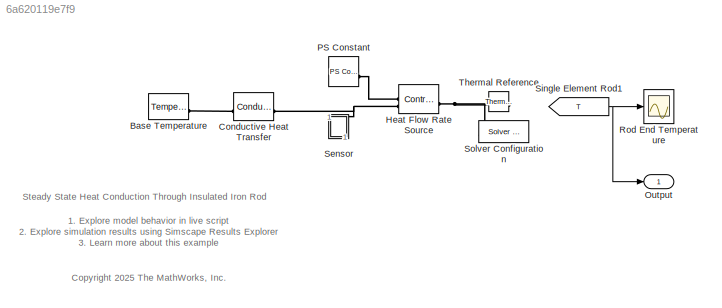
MODEL slx_6a620119e7f9
KIND model
CONFIG AbsTol = 1e-3
CONFIG EnableMultiTasking = on
CONFIG FixedStep = auto
CONFIG MaxStep = 100
CONFIG MinStep = auto
CONFIG PreLoadFcn = if ~exist('T_base', 'var')   T_base= 100;   end % [degC]\nif ~exist('L', 'var')        L= 0.2;        end % [m]\nif ~exist('D', 'var')        D= 0.025;      end % [m]\nif ~exist('A', 'var')        A= pi*D^2/4;   end % [m^2]\nif ~exist('k', 'var')        k= 80.2;       end % [W/(K*m)]\nif ~exist('Q_case_1', 'var') Q_case_1= 18;  end % [W]
CONFIG RelTol = 1e-3
CONFIG SampleTimeConstraint = Unconstrained
CONFIG SolverName = VariableStepAuto
CONFIG StartTime = 0.0
CONFIG StopTime = 5
BLOCK [Reference] Base Temperature  REF=fl_lib/Thermal/Thermal Sources/Temperature Source
  SourceBlock = fl_lib/Thermal/Thermal Sources/Temperature Source
  SourceType = Temperature Source
BLOCK [Reference] Conductive Heat Transfer  REF=fl_lib/Thermal/Thermal Elements/Conductive Heat
Transfer
  SourceBlock = fl_lib/Thermal/Thermal Elements/Conductive Heat\nTransfer
  SourceType = Conductive Heat\nTransfer
BLOCK [Reference] Heat Flow Rate Source  REF=fl_lib/Thermal/Thermal Sources/Controlled Heat Flow
Rate Source
  SourceBlock = fl_lib/Thermal/Thermal Sources/Controlled Heat Flow\nRate Source
  SourceType = Controlled Heat Flow\nRate Source
BLOCK [Outport] Output
BLOCK [Reference] PS Constant  REF=fl_lib/Physical Signals/Sources/PS Constant
  SourceBlock = fl_lib/Physical Signals/Sources/PS Constant
  SourceType = PS Constant
BLOCK [Scope] Rod End Temperature
  ActiveDisplayYMaximum = 9.55536
  ActiveDisplayYMinimum = 7.55536
  DataLoggingDecimation = 1
  DataLoggingLimitDataPoints = on
  DataLoggingSaveFormat = Structure With Time
  Floating = off
  GraphicalSettings = {"GraphicalSettings":{"LegacySettings":true,"Style":{"AxesScalingProperties":{"ScaleAxesLimitsAtStop":false},"Style":{"AxesColor":"[0 0 0]","BackgroundColor":"[0.501960784313725 0.501960784313725 0.501960784313725]","ChannelNames":[""],"ColorOrder":"[1 0.909803921568627 0.392156862745098;0.149019607843137 0.549019607843137 0.866666666666667;0.96078431372549 0.466666666666667 0.16078431372549;0.286...<+725ch>
  MultipleDisplayCache = [{"MaxYLimMag":9.55536,"MaxYLimReal":9.55536,"MinYLimMag":7.55536,"MinYLimReal":7.55536,"PlotAsMagnitudePhase":false,"ShowGrid":true,"ShowLegend":false,"Title":"Temperature (degC)","YLabel":""}]
  NumInputPorts = 1
  Tag = PublishScope
  Title = Temperature (degC)
  WasSavedAsWebScope = on
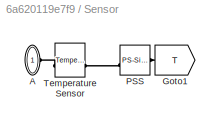
BLOCK [SubSystem] Sensor
BLOCK [PMIOPort] Sensor/A
  Side = Left
BLOCK [Goto] Sensor/Goto1
  GotoTag = T
  Tag = CustomStyle
  TagVisibility = global
BLOCK [Reference] Sensor/PSS  REF=nesl_utility/PS-Simulink
Converter
  SourceBlock = nesl_utility/PS-Simulink\nConverter
  SourceType = PS-Simulink\nConverter
BLOCK [Reference] Sensor/Temperature Sensor  REF=fl_lib/Thermal/Thermal Sensors/Temperature Sensor
  SourceBlock = fl_lib/Thermal/Thermal Sensors/Temperature Sensor
  SourceType = Temperature Sensor
BLOCK [From] Single Element Rod1
  GotoTag = T
  Tag = CustomStyle
  TagVisibility = global
BLOCK [Reference] Solver Configuration  REF=nesl_utility/Solver
Configuration
  SourceBlock = nesl_utility/Solver\nConfiguration
  SourceType = Solver\nConfiguration
BLOCK [Reference] Thermal Reference  REF=fl_lib/Thermal/Thermal Elements/Thermal Reference
  SourceBlock = fl_lib/Thermal/Thermal Elements/Thermal Reference
  SourceType = Thermal Reference
ANNOTATION (root): 1. Explore model behavior in live script 2. Explore simulation results using Simscape Results Explorer 3. Learn more about this example
ANNOTATION (root): <copyright redacted>
ANNOTATION (root): Steady State Heat Conduction Through Insulated Iron Rod
LINE Sensor/PSS:1 -> Sensor/Goto1:1
NET Single Element Rod1:1 -> Output:1, Rod End Temperature:1
PLINE Base Temperature:LConn1 -- Conductive Heat Transfer:LConn1
PNET net1: Conductive Heat Transfer:RConn1 -- Heat Flow Rate Source:RConn2 -- Sensor:LConn1
PNET net2: Heat Flow Rate Source:LConn1 -- Solver Configuration:RConn1 -- Thermal Reference:LConn1
PLINE Heat Flow Rate Source:RConn1 -- PS Constant:RConn1
PLINE Sensor/A:RConn1 -- Sensor/Temperature Sensor:LConn1
PLINE Sensor/PSS:LConn1 -- Sensor/Temperature Sensor:RConn1
note: NET lines group one-source signal fan-out (src -> all destinations, sorted); 1:1 wires keep LINE; PNET lines group multi-terminal physical nets as a canonical sorted terminal list (undirected conserving connections); 2-terminal nets keep the pairwise PLINE form
